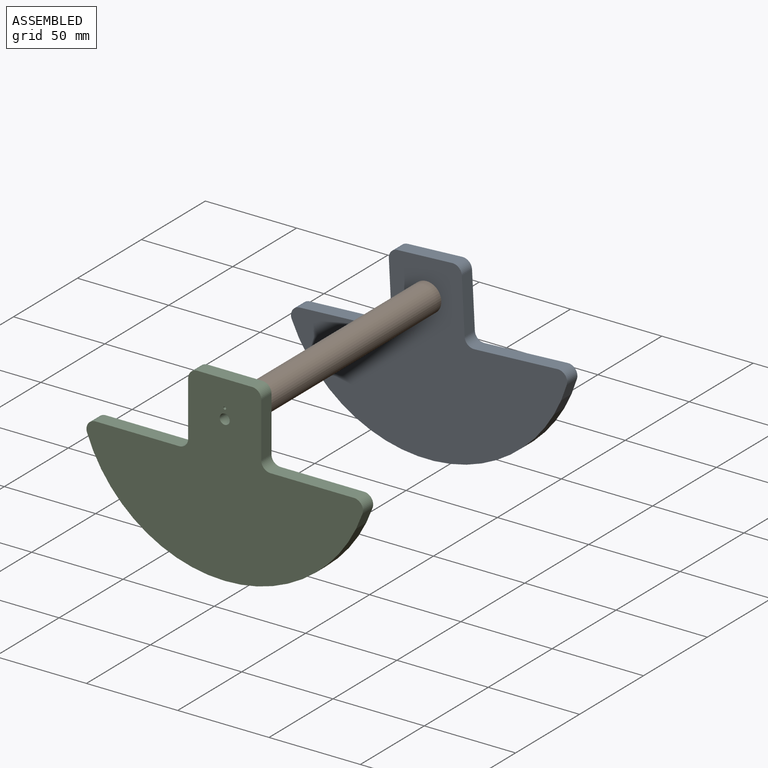
[diagram: assembled view]
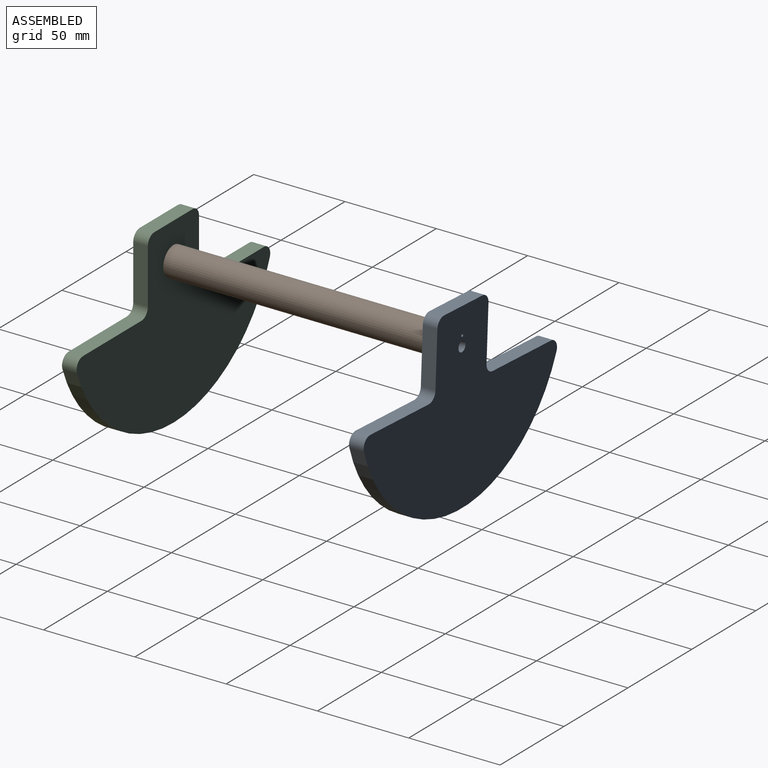
[diagram: assembled view, second angle]
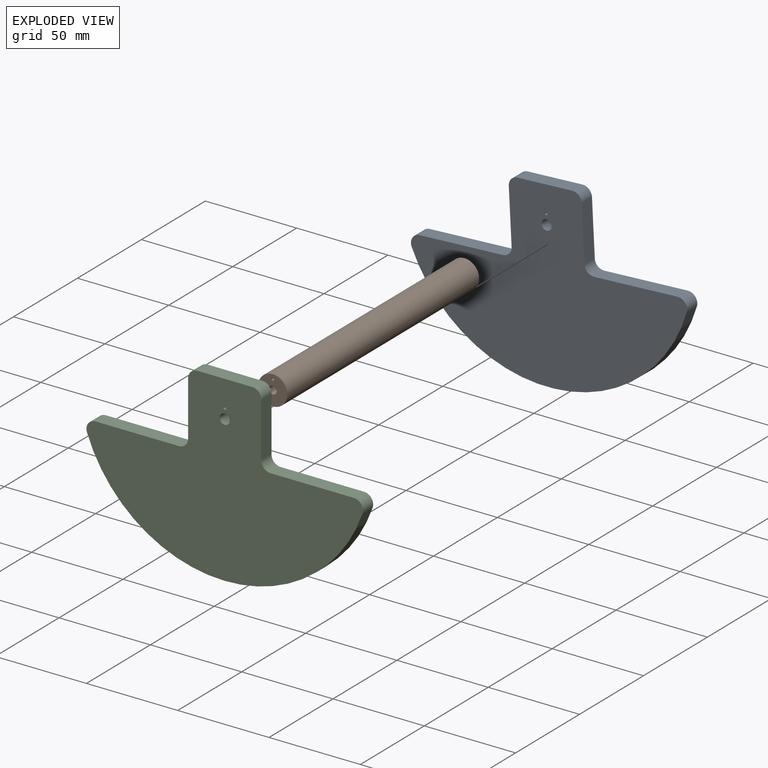
[diagram: exploded view]
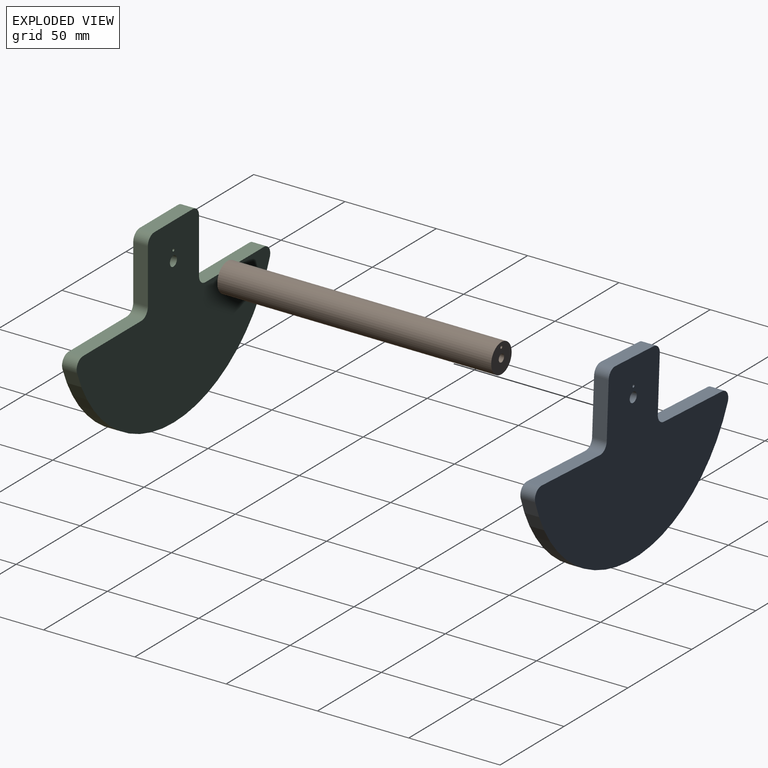
[diagram: exploded view, second angle]
ASSEMBLY  parts=3 mates=4
PART A: 16 faces, bbox 151.4x8x100 mm
  f0: plane 30x8mm, normal (0,0,1), area 240mm2, adj f6,f7,f8,f13
  f1: plane 30x8mm, normal (-1,0,0), area 240mm2, adj f6,f7,f8,f9
  f2: plane 45.71x8mm, normal (0,0,1), area 365.7mm2, adj f6,f7,f9,f10
  f3: cylinder r=80mm len=150.85mm, axis (0,1,0), area 1575.6mm2, adj f6,f7,f10,f11
  f4: plane 45.71x8mm, normal (0,0,1), area 365.7mm2, adj f6,f7,f11,f12
  f5: plane 30x8mm, normal (1,0,0), area 240mm2, adj f6,f7,f12,f13
  f6: plane 151.42x100mm, normal (0,-1,0), area 8439.7mm2, adj f0,f1,f2,f3,f4,f5,f8,f9
  f7: plane 151.42x100mm, normal (0,1,0), area 8439.7mm2, adj f0,f1,f2,f3,f4,f5,f8,f9
  f8: cylinder r=5mm len=8mm, axis (0,-1,0), area 62.8mm2, adj f0,f1,f6,f7
  f9: cylinder r=5mm len=8mm, axis (0,-1,0), area 62.8mm2, adj f1,f2,f6,f7
  f10: cylinder r=5mm len=8mm, axis (0,1,0), area 76.4mm2, adj f2,f3,f6,f7
  f11: cylinder r=5mm len=8mm, axis (0,1,0), area 76.4mm2, adj f3,f4,f6,f7
  f12: cylinder r=5mm len=8mm, axis (0,-1,0), area 62.8mm2, adj f4,f5,f6,f7
  f13: cylinder r=5mm len=8mm, axis (0,1,0), area 62.8mm2, adj f0,f5,f6,f7
  f14: cylinder r=2.75mm len=8mm, axis (0,-1,0), area 138.2mm2, adj f6,f7
  f15: cylinder r=0.75mm len=8mm, axis (0,-1,0), area 37.7mm2, adj f6,f7
PART B: 11 faces, bbox 16x150x16 mm
  f0: cylinder r=8mm len=150mm, axis (0,-1,0), area 7539.8mm2, adj f1,f2
  f1: plane 16x16mm, normal (0,-1,0), area 185.4mm2, adj f0,f4,f8
  f2: plane 16x16mm, normal (0,1,0), area 185.4mm2, adj f0,f6,f10
  f3: cone r=0mm half-angle=59deg, axis (0,-1,0), area 16.2mm2, adj f4
  f4: cylinder r=2.1mm len=17.4mm, axis (0,-1,0), area 229.6mm2, adj f1,f3
  f5: cone r=0mm half-angle=59deg, axis (0,1,0), area 16.2mm2, adj f6
  f6: cylinder r=2.1mm len=17.4mm, axis (0,1,0), area 229.6mm2, adj f2,f5
  f7: cone r=0mm half-angle=59deg, axis (0,-1,0), area 2.1mm2, adj f8
  f8: cylinder r=0.75mm len=20mm, axis (0,-1,0), area 94.2mm2, adj f1,f7
  f9: cone r=0mm half-angle=59deg, axis (0,1,0), area 2.1mm2, adj f10
  f10: cylinder r=0.75mm len=20mm, axis (0,1,0), area 94.2mm2, adj f2,f9
PART C: same geometry as A
PLACE A rot(axis=(-0.03,0,1),180deg) t=(-7.03,80.19,-3.72)mm
PLACE B t=(-7.03,1.19,-3.67)mm fixed
PLACE C t=(-7.03,-77.81,-3.67)mm
MATE planar C.f7 <-> B.f0  axis (0,1,0) through (-7.03,-73.81,-40.38)mm
MATE cylindrical C.f14 <-> B.f0  axis (0,-1,0) through (-7.03,-77.81,-3.67)mm
MATE planar A.f7 <-> B.f2  axis (0,-1,0) through (-53.79,76.19,-26.16)mm
MATE cylindrical A.f14 <-> B.f2  axis (0,1,0) through (-7.03,80.19,-3.72)mm
